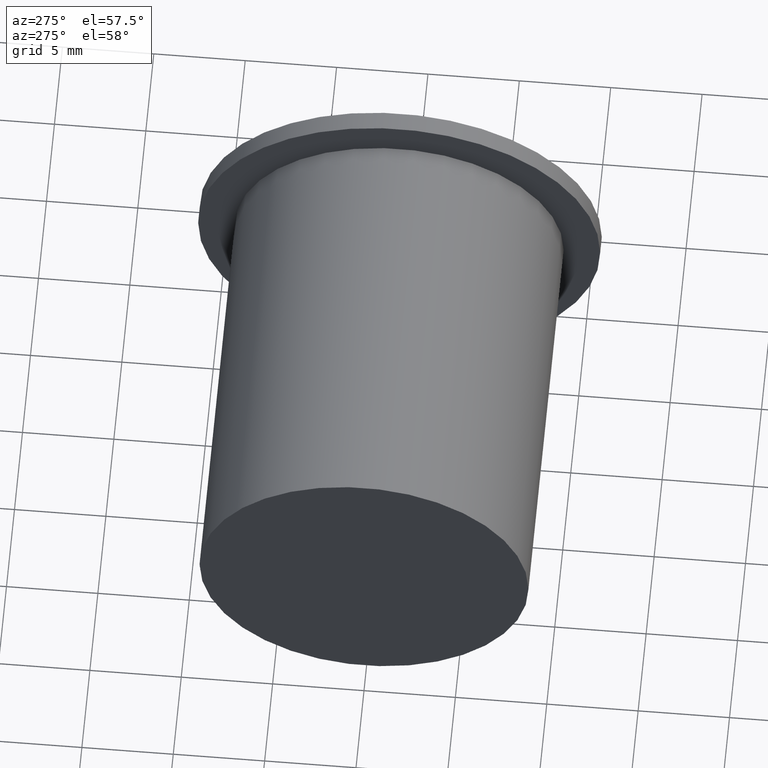
[diagram: clean part render]
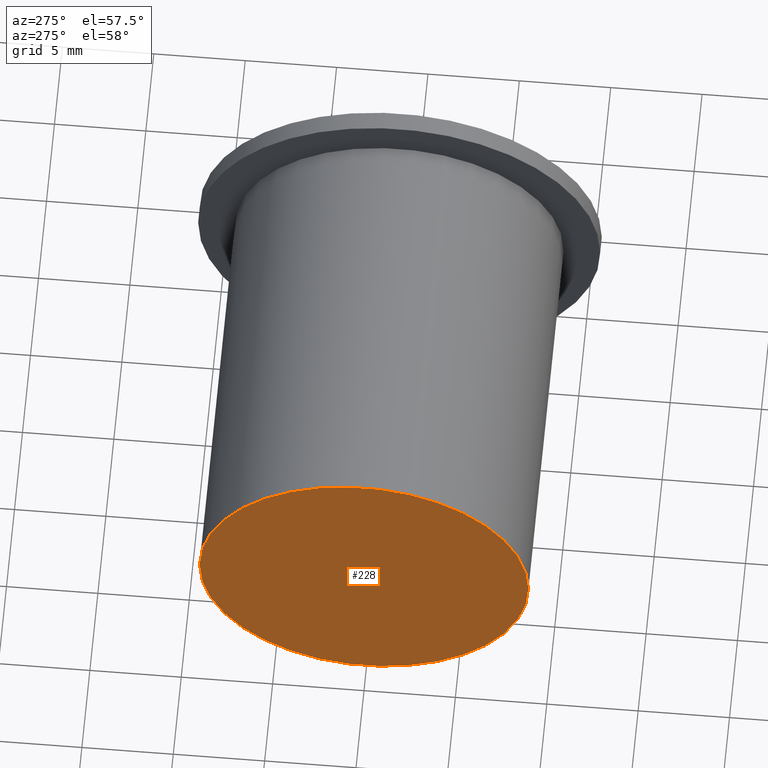
[diagram: same view with one face highlighted and labeled with its STEP entity id]
A machine part, auxiliary view. The second image highlights one B-rep face of the part: STEP entity #228.
In plain terms, the highlighted planar face has unit normal (1, 0, 0).
Its self-contained STEP definition (entity closure, byte-faithful):
#189=CARTESIAN_POINT('',(-25.0,9.0,0.0));
#190=VERTEX_POINT('',#189);
#197=CARTESIAN_POINT('',(-25.0,-9.0,0.0));
#198=VERTEX_POINT('',#197);
#199=CARTESIAN_POINT('',(-25.0,0.0,0.0));
#200=DIRECTION('',(1.0,0.0,0.0));
#201=DIRECTION('',(0.0,1.0,0.0));
#202=AXIS2_PLACEMENT_3D('',#199,#200,#201);
#203=CIRCLE('',#202,9.0);
#204=EDGE_CURVE('',#190,#198,#203,.T.);
#206=CARTESIAN_POINT('',(-25.0,0.0,0.0));
#207=DIRECTION('',(1.0,0.0,0.0));
#208=DIRECTION('',(0.0,1.0,0.0));
#209=AXIS2_PLACEMENT_3D('',#206,#207,#208);
#210=CIRCLE('',#209,9.0);
#211=EDGE_CURVE('',#198,#190,#210,.T.);
#219=CARTESIAN_POINT('',(-25.0,18.0,-18.0));
#220=DIRECTION('',(1.0,0.0,0.0));
#221=DIRECTION('',(0.0,0.0,1.0));
#222=AXIS2_PLACEMENT_3D('',#219,#220,#221);
#223=PLANE('',#222);
#224=ORIENTED_EDGE('',*,*,#211,.F.);
#225=ORIENTED_EDGE('',*,*,#204,.F.);
#226=EDGE_LOOP('',(#224,#225));
#227=FACE_OUTER_BOUND('',#226,.T.);
#228=ADVANCED_FACE('',(#227),#223,.F.);